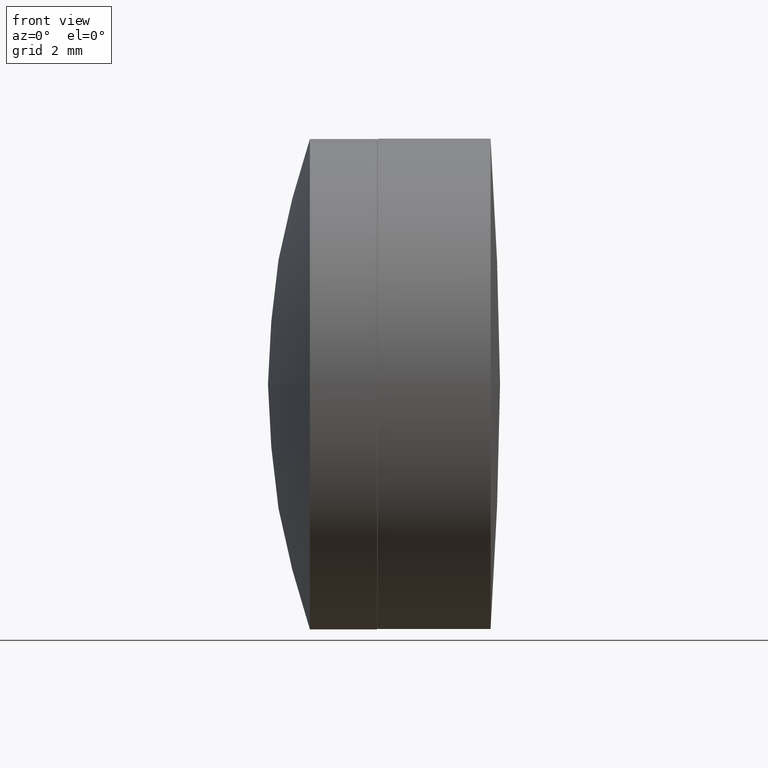
[diagram: clean part render]
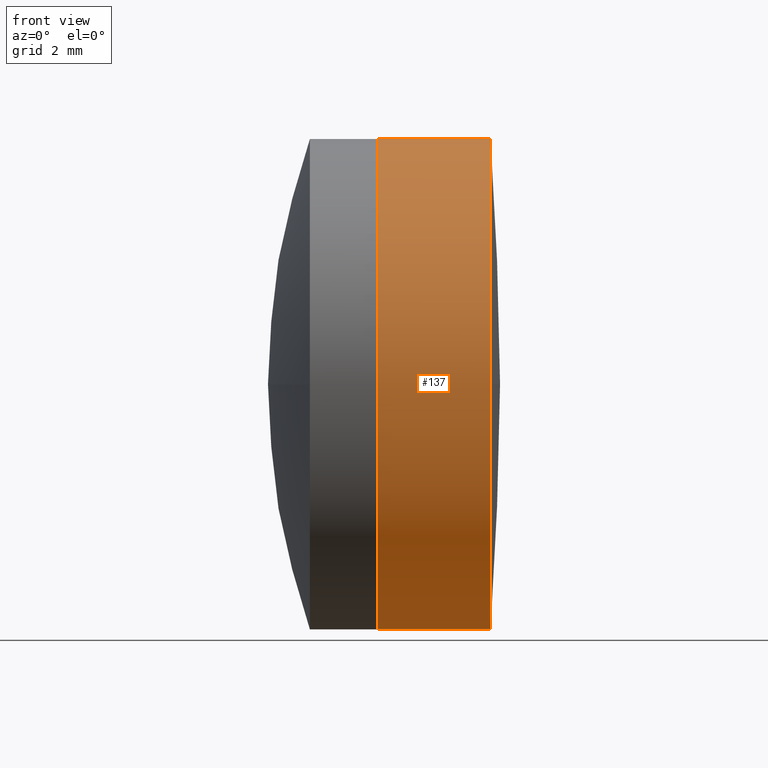
[diagram: same view with one face highlighted and labeled with its STEP entity id]
A machine part, front view. The second image highlights one B-rep face of the part: STEP entity #137.
In plain terms, the highlighted cylindrical surface (partial cylindrical patch) has radius 6.35 mm, axis along (-1, -0, -0).
Its self-contained STEP definition (entity closure, byte-faithful):
#8 = CARTESIAN_POINT ( 'NONE',  ( -76.01897937436920927, 15.49225014134571232, 0.000000000000000000 ) ) ;
#15 = CIRCLE ( 'NONE', #268, 6.349999999999999645 ) ;
#16 = DIRECTION ( 'NONE',  ( -1.000000000000000000, -0.000000000000000000, -0.000000000000000000 ) ) ;
#25 = VECTOR ( 'NONE', #446, 1000.000000000000000 ) ;
#33 = ORIENTED_EDGE ( 'NONE', *, *, #359, .F. ) ;
#35 = CARTESIAN_POINT ( 'NONE',  ( -74.26425793104048978, 9.142250141345662939, -7.776507174585752314E-16 ) ) ;
#50 = AXIS2_PLACEMENT_3D ( 'NONE', #8, #235, #91 ) ;
#52 = DIRECTION ( 'NONE',  ( -1.000000000000000000, -0.000000000000000000, -0.000000000000000000 ) ) ;
#60 = VERTEX_POINT ( 'NONE', #114 ) ;
#71 = DIRECTION ( 'NONE',  ( -1.000000000000000000, -0.000000000000000000, -0.000000000000000000 ) ) ;
#72 = CIRCLE ( 'NONE', #191, 6.349999999999999645 ) ;
#73 = VERTEX_POINT ( 'NONE', #192 ) ;
#85 = DIRECTION ( 'NONE',  ( 0.000000000000000000, 0.000000000000000000, 1.000000000000000000 ) ) ;
#91 = DIRECTION ( 'NONE',  ( 0.000000000000000000, 0.000000000000000000, 1.000000000000000000 ) ) ;
#103 = CARTESIAN_POINT ( 'NONE',  ( -74.26425793104050399, 15.49225014134571232, 0.000000000000000000 ) ) ;
#114 = CARTESIAN_POINT ( 'NONE',  ( -77.18875715362992196, 9.142250141345700243, -7.776507174585707940E-16 ) ) ;
#118 = FACE_OUTER_BOUND ( 'NONE', #384, .T. ) ;
#128 = AXIS2_PLACEMENT_3D ( 'NONE', #103, #71, #176 ) ;
#137 = ADVANCED_FACE ( 'NONE', ( #118 ), #344, .T. ) ;
#142 = CARTESIAN_POINT ( 'NONE',  ( -76.01897937436920927, 15.49225014134571232, -6.349999999999999645 ) ) ;
#149 = EDGE_CURVE ( 'NONE', #209, #73, #250, .T. ) ;
#174 = CARTESIAN_POINT ( 'NONE',  ( -77.18875715362992196, 15.49225014134571232, 6.349999999999999645 ) ) ;
#176 = DIRECTION ( 'NONE',  ( 0.000000000000000000, 0.000000000000000000, 1.000000000000000000 ) ) ;
#180 = LINE ( 'NONE', #324, #302 ) ;
#190 = CIRCLE ( 'NONE', #128, 6.349999999999999645 ) ;
#191 = AXIS2_PLACEMENT_3D ( 'NONE', #222, #429, #298 ) ;
#192 = CARTESIAN_POINT ( 'NONE',  ( -77.18875715362992196, 15.49225014134571232, -6.349999999999999645 ) ) ;
#193 = VERTEX_POINT ( 'NONE', #382 ) ;
#199 = ORIENTED_EDGE ( 'NONE', *, *, #428, .T. ) ;
#209 = VERTEX_POINT ( 'NONE', #414 ) ;
#222 = CARTESIAN_POINT ( 'NONE',  ( -74.26425793104050399, 15.49225014134571232, 0.000000000000000000 ) ) ;
#224 = DIRECTION ( 'NONE',  ( 0.000000000000000000, 0.000000000000000000, 1.000000000000000000 ) ) ;
#235 = DIRECTION ( 'NONE',  ( -1.000000000000000000, -0.000000000000000000, -0.000000000000000000 ) ) ;
#250 = LINE ( 'NONE', #142, #25 ) ;
#252 = EDGE_CURVE ( 'NONE', #209, #289, #190, .T. ) ;
#261 = ORIENTED_EDGE ( 'NONE', *, *, #252, .T. ) ;
#268 = AXIS2_PLACEMENT_3D ( 'NONE', #425, #52, #224 ) ;
#273 = ORIENTED_EDGE ( 'NONE', *, *, #149, .F. ) ;
#289 = VERTEX_POINT ( 'NONE', #35 ) ;
#296 = CARTESIAN_POINT ( 'NONE',  ( -77.18875715362992196, 15.49225014134571232, 0.000000000000000000 ) ) ;
#298 = DIRECTION ( 'NONE',  ( 0.000000000000000000, 0.000000000000000000, 1.000000000000000000 ) ) ;
#302 = VECTOR ( 'NONE', #16, 1000.000000000000000 ) ;
#312 = ORIENTED_EDGE ( 'NONE', *, *, #435, .F. ) ;
#324 = CARTESIAN_POINT ( 'NONE',  ( -76.01897937436920927, 15.49225014134571232, 6.349999999999999645 ) ) ;
#337 = ORIENTED_EDGE ( 'NONE', *, *, #438, .T. ) ;
#344 = CYLINDRICAL_SURFACE ( 'NONE', #50, 6.349999999999999645 ) ;
#359 = EDGE_CURVE ( 'NONE', #73, #60, #15, .T. ) ;
#382 = CARTESIAN_POINT ( 'NONE',  ( -74.26425793104050399, 15.49225014134571232, 6.349999999999999645 ) ) ;
#384 = EDGE_LOOP ( 'NONE', ( #273, #261, #337, #199, #312, #33 ) ) ;
#394 = DIRECTION ( 'NONE',  ( -1.000000000000000000, -0.000000000000000000, -0.000000000000000000 ) ) ;
#410 = AXIS2_PLACEMENT_3D ( 'NONE', #296, #394, #85 ) ;
#414 = CARTESIAN_POINT ( 'NONE',  ( -74.26425793104050399, 15.49225014134571232, -6.349999999999999645 ) ) ;
#418 = CIRCLE ( 'NONE', #410, 6.349999999999999645 ) ;
#425 = CARTESIAN_POINT ( 'NONE',  ( -77.18875715362992196, 15.49225014134571232, 0.000000000000000000 ) ) ;
#428 = EDGE_CURVE ( 'NONE', #193, #442, #180, .T. ) ;
#429 = DIRECTION ( 'NONE',  ( -1.000000000000000000, -0.000000000000000000, -0.000000000000000000 ) ) ;
#435 = EDGE_CURVE ( 'NONE', #60, #442, #418, .T. ) ;
#438 = EDGE_CURVE ( 'NONE', #289, #193, #72, .T. ) ;
#442 = VERTEX_POINT ( 'NONE', #174 ) ;
#446 = DIRECTION ( 'NONE',  ( -1.000000000000000000, -0.000000000000000000, -0.000000000000000000 ) ) ;